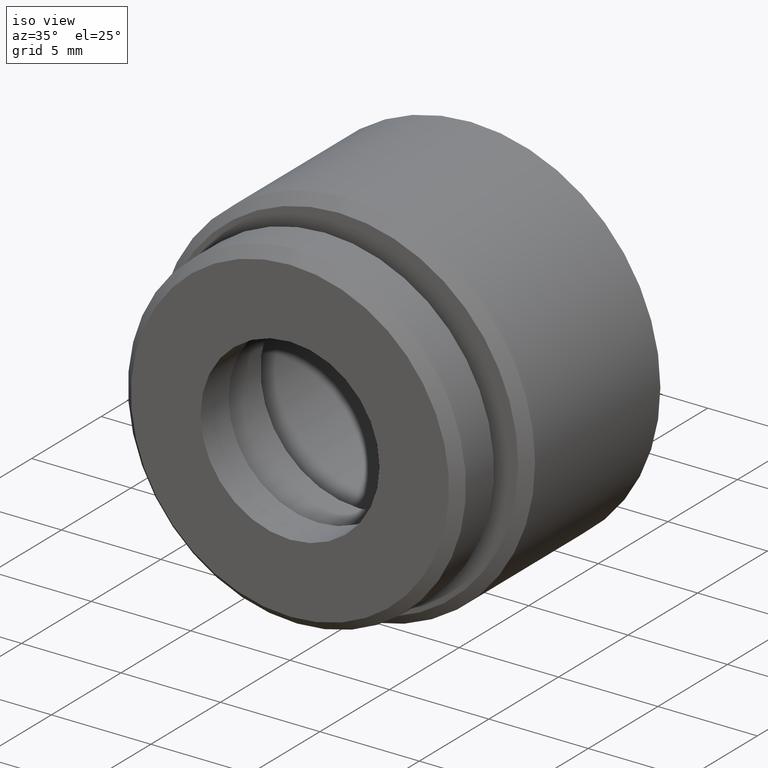
[diagram: clean part render]
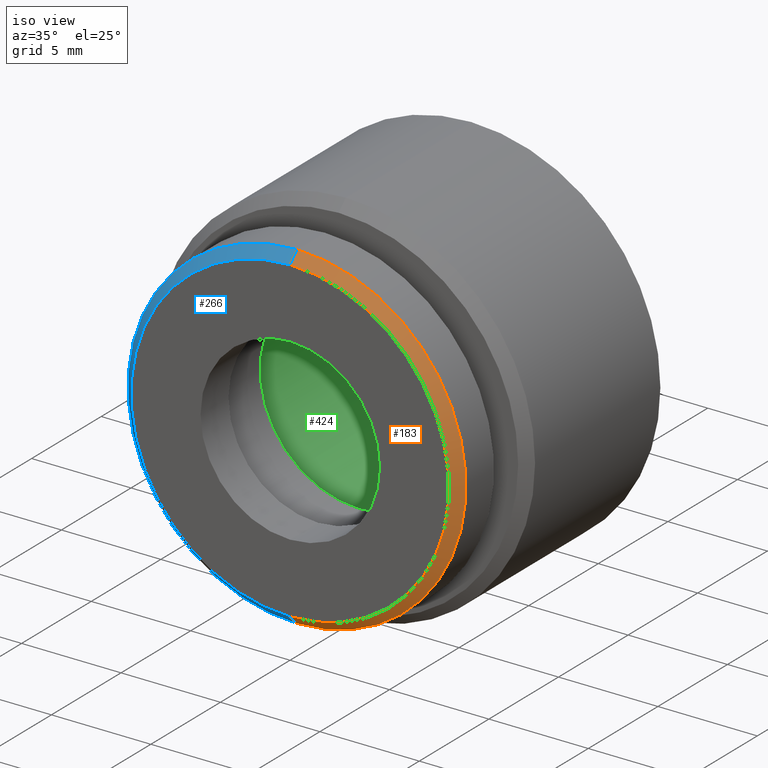
[diagram: same view with three faces highlighted in distinct colors, each labeled with its STEP entity id]
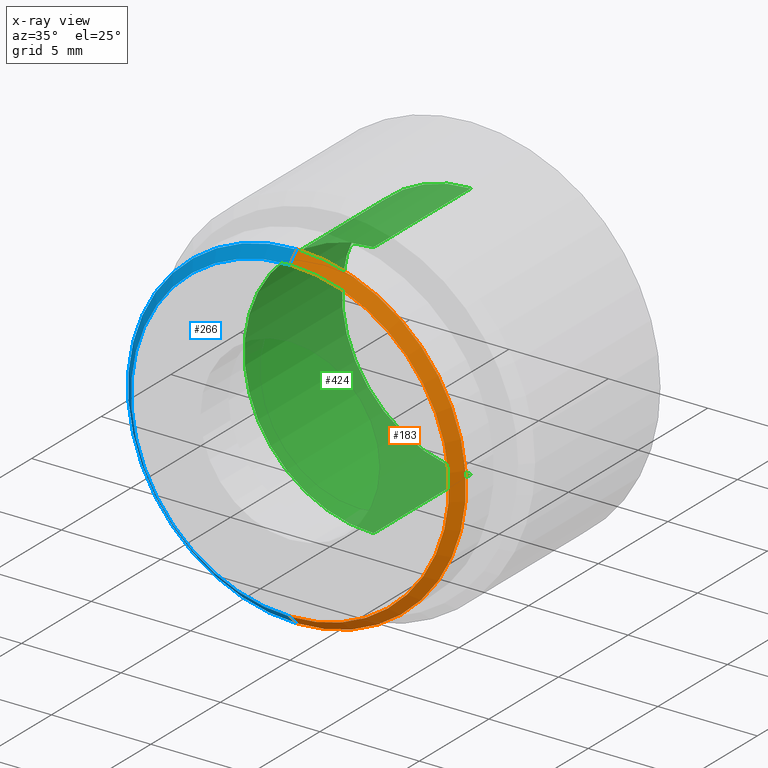
[diagram: x-ray of the same camera — body ghosted, the three highlighted faces saturated]
A machine part, iso view with three faces highlighted in distinct colors.
The next image is the same camera in x-ray (body ghosted, the three faces saturated) — at least one of them is partly hidden behind the body in this view.
Their STEP definitions:

[orange] entity #183 — the highlighted conical surface has half-angle 45 deg.
#3 = DIRECTION ( 'NONE',  ( 0.0000000000000000000, 0.0000000000000000000, -1.000000000000000000 ) ) ;
#32 = CARTESIAN_POINT ( 'NONE',  ( 9.797174393178825700E-016, 0.0000000000000000000, -8.000000000000000000 ) ) ;
#81 = EDGE_CURVE ( 'NONE', #293, #108, #849, .T. ) ;
#86 = AXIS2_PLACEMENT_3D ( 'NONE', #750, #156, #633 ) ;
#108 = VERTEX_POINT ( 'NONE', #315 ) ;
#117 = AXIS2_PLACEMENT_3D ( 'NONE', #579, #753, #3 ) ;
#149 = DIRECTION ( 'NONE',  ( 0.0000000000000000000, 1.000000000000000000, 0.0000000000000000000 ) ) ;
#156 = DIRECTION ( 'NONE',  ( 0.0000000000000000000, 1.000000000000000000, 0.0000000000000000000 ) ) ;
#183 = ADVANCED_FACE ( 'NONE', ( #493 ), #609, .T. ) ;
#227 = ORIENTED_EDGE ( 'NONE', *, *, #359, .T. ) ;
#256 = CIRCLE ( 'NONE', #117, 8.000000000000000000 ) ;
#257 = EDGE_CURVE ( 'NONE', #803, #293, #256, .T. ) ;
#267 = DIRECTION ( 'NONE',  ( 0.0000000000000000000, 0.7071067811865487900, 0.7071067811865463500 ) ) ;
#270 = VECTOR ( 'NONE', #513, 1000.000000000000000 ) ;
#293 = VERTEX_POINT ( 'NONE', #381 ) ;
#301 = CIRCLE ( 'NONE', #789, 8.500000000000000000 ) ;
#315 = CARTESIAN_POINT ( 'NONE',  ( 1.040949779275250100E-015, 0.5000000000000022200, 8.500000000000000000 ) ) ;
#359 = EDGE_CURVE ( 'NONE', #803, #835, #465, .T. ) ;
#381 = CARTESIAN_POINT ( 'NONE',  ( 0.0000000000000000000, 0.0000000000000000000, 8.000000000000000000 ) ) ;
#428 = ORIENTED_EDGE ( 'NONE', *, *, #81, .F. ) ;
#464 = CARTESIAN_POINT ( 'NONE',  ( 0.0000000000000000000, 0.5000000000000022200, -8.500000000000000000 ) ) ;
#465 = LINE ( 'NONE', #32, #270 ) ;
#475 = ORIENTED_EDGE ( 'NONE', *, *, #510, .F. ) ;
#493 = FACE_OUTER_BOUND ( 'NONE', #839, .T. ) ;
#510 = EDGE_CURVE ( 'NONE', #108, #835, #301, .T. ) ;
#513 = DIRECTION ( 'NONE',  ( 8.659560562354918100E-017, 0.7071067811865487900, -0.7071067811865463500 ) ) ;
#519 = CARTESIAN_POINT ( 'NONE',  ( 0.0000000000000000000, 0.5000000000000022200, 0.0000000000000000000 ) ) ;
#579 = CARTESIAN_POINT ( 'NONE',  ( 0.0000000000000000000, 0.0000000000000000000, 0.0000000000000000000 ) ) ;
#609 = CONICAL_SURFACE ( 'NONE', #86, 8.000000000000000000, 0.7853981633974466100 ) ;
#633 = DIRECTION ( 'NONE',  ( 0.0000000000000000000, 0.0000000000000000000, 1.000000000000000000 ) ) ;
#745 = ORIENTED_EDGE ( 'NONE', *, *, #257, .F. ) ;
#750 = CARTESIAN_POINT ( 'NONE',  ( 0.0000000000000000000, 0.0000000000000000000, 0.0000000000000000000 ) ) ;
#753 = DIRECTION ( 'NONE',  ( -0.0000000000000000000, -1.000000000000000000, -0.0000000000000000000 ) ) ;
#759 = DIRECTION ( 'NONE',  ( 0.0000000000000000000, 0.0000000000000000000, -1.000000000000000000 ) ) ;
#789 = AXIS2_PLACEMENT_3D ( 'NONE', #519, #149, #759 ) ;
#796 = VECTOR ( 'NONE', #267, 1000.000000000000000 ) ;
#797 = CARTESIAN_POINT ( 'NONE',  ( 1.010333609296566500E-015, 0.0000000000000000000, -8.000000000000000000 ) ) ;
#803 = VERTEX_POINT ( 'NONE', #797 ) ;
#835 = VERTEX_POINT ( 'NONE', #464 ) ;
#839 = EDGE_LOOP ( 'NONE', ( #745, #227, #475, #428 ) ) ;
#849 = LINE ( 'NONE', #851, #796 ) ;
#851 = CARTESIAN_POINT ( 'NONE',  ( 0.0000000000000000000, 0.0000000000000000000, 8.000000000000000000 ) ) ;

[blue] entity #266 — the highlighted conical surface has half-angle 45 deg.
#5 = CIRCLE ( 'NONE', #539, 8.500000000000000000 ) ;
#27 = CONICAL_SURFACE ( 'NONE', #280, 8.000000000000000000, 0.7853981633974466100 ) ;
#32 = CARTESIAN_POINT ( 'NONE',  ( 9.797174393178825700E-016, 0.0000000000000000000, -8.000000000000000000 ) ) ;
#81 = EDGE_CURVE ( 'NONE', #293, #108, #849, .T. ) ;
#85 = CARTESIAN_POINT ( 'NONE',  ( 0.0000000000000000000, 0.5000000000000022200, 0.0000000000000000000 ) ) ;
#108 = VERTEX_POINT ( 'NONE', #315 ) ;
#154 = ORIENTED_EDGE ( 'NONE', *, *, #81, .T. ) ;
#167 = EDGE_LOOP ( 'NONE', ( #743, #300, #154, #561 ) ) ;
#198 = EDGE_CURVE ( 'NONE', #835, #108, #5, .T. ) ;
#230 = FACE_OUTER_BOUND ( 'NONE', #167, .T. ) ;
#266 = ADVANCED_FACE ( 'NONE', ( #230 ), #27, .T. ) ;
#267 = DIRECTION ( 'NONE',  ( 0.0000000000000000000, 0.7071067811865487900, 0.7071067811865463500 ) ) ;
#270 = VECTOR ( 'NONE', #513, 1000.000000000000000 ) ;
#280 = AXIS2_PLACEMENT_3D ( 'NONE', #662, #636, #366 ) ;
#293 = VERTEX_POINT ( 'NONE', #381 ) ;
#300 = ORIENTED_EDGE ( 'NONE', *, *, #352, .F. ) ;
#315 = CARTESIAN_POINT ( 'NONE',  ( 1.040949779275250100E-015, 0.5000000000000022200, 8.500000000000000000 ) ) ;
#335 = DIRECTION ( 'NONE',  ( 0.0000000000000000000, 1.000000000000000000, 0.0000000000000000000 ) ) ;
#352 = EDGE_CURVE ( 'NONE', #293, #803, #577, .T. ) ;
#359 = EDGE_CURVE ( 'NONE', #803, #835, #465, .T. ) ;
#366 = DIRECTION ( 'NONE',  ( 0.0000000000000000000, 0.0000000000000000000, 1.000000000000000000 ) ) ;
#381 = CARTESIAN_POINT ( 'NONE',  ( 0.0000000000000000000, 0.0000000000000000000, 8.000000000000000000 ) ) ;
#464 = CARTESIAN_POINT ( 'NONE',  ( 0.0000000000000000000, 0.5000000000000022200, -8.500000000000000000 ) ) ;
#465 = LINE ( 'NONE', #32, #270 ) ;
#513 = DIRECTION ( 'NONE',  ( 8.659560562354918100E-017, 0.7071067811865487900, -0.7071067811865463500 ) ) ;
#539 = AXIS2_PLACEMENT_3D ( 'NONE', #85, #335, #659 ) ;
#561 = ORIENTED_EDGE ( 'NONE', *, *, #198, .F. ) ;
#577 = CIRCLE ( 'NONE', #860, 8.000000000000000000 ) ;
#634 = DIRECTION ( 'NONE',  ( -0.0000000000000000000, -1.000000000000000000, -0.0000000000000000000 ) ) ;
#636 = DIRECTION ( 'NONE',  ( 0.0000000000000000000, 1.000000000000000000, 0.0000000000000000000 ) ) ;
#659 = DIRECTION ( 'NONE',  ( 0.0000000000000000000, 0.0000000000000000000, -1.000000000000000000 ) ) ;
#662 = CARTESIAN_POINT ( 'NONE',  ( 0.0000000000000000000, 0.0000000000000000000, 0.0000000000000000000 ) ) ;
#743 = ORIENTED_EDGE ( 'NONE', *, *, #359, .F. ) ;
#763 = CARTESIAN_POINT ( 'NONE',  ( 0.0000000000000000000, 0.0000000000000000000, 0.0000000000000000000 ) ) ;
#796 = VECTOR ( 'NONE', #267, 1000.000000000000000 ) ;
#797 = CARTESIAN_POINT ( 'NONE',  ( 1.010333609296566500E-015, 0.0000000000000000000, -8.000000000000000000 ) ) ;
#803 = VERTEX_POINT ( 'NONE', #797 ) ;
#835 = VERTEX_POINT ( 'NONE', #464 ) ;
#849 = LINE ( 'NONE', #851, #796 ) ;
#851 = CARTESIAN_POINT ( 'NONE',  ( 0.0000000000000000000, 0.0000000000000000000, 8.000000000000000000 ) ) ;
#860 = AXIS2_PLACEMENT_3D ( 'NONE', #763, #634, #864 ) ;
#864 = DIRECTION ( 'NONE',  ( 0.0000000000000000000, 0.0000000000000000000, -1.000000000000000000 ) ) ;

[green] entity #424 — the highlighted cylindrical surface (partial cylindrical patch) has radius 6.5 mm, axis along (-0, -1, -0).
#28 = ORIENTED_EDGE ( 'NONE', *, *, #111, .T. ) ;
#35 = DIRECTION ( 'NONE',  ( 0.0000000000000000000, 0.0000000000000000000, 1.000000000000000000 ) ) ;
#52 = VECTOR ( 'NONE', #602, 1000.000000000000000 ) ;
#56 = LINE ( 'NONE', #377, #451 ) ;
#67 = LINE ( 'NONE', #76, #52 ) ;
#76 = CARTESIAN_POINT ( 'NONE',  ( 7.960204194457796500E-016, 0.0000000000000000000, 6.500000000000000900 ) ) ;
#79 = DIRECTION ( 'NONE',  ( -0.0000000000000000000, -1.000000000000000000, -0.0000000000000000000 ) ) ;
#111 = EDGE_CURVE ( 'NONE', #551, #805, #666, .T. ) ;
#119 = CARTESIAN_POINT ( 'NONE',  ( 0.0000000000000000000, 12.99999999999999600, -6.500000000000000900 ) ) ;
#153 = DIRECTION ( 'NONE',  ( -0.0000000000000000000, -1.000000000000000000, -0.0000000000000000000 ) ) ;
#238 = FACE_OUTER_BOUND ( 'NONE', #367, .T. ) ;
#261 = AXIS2_PLACEMENT_3D ( 'NONE', #724, #725, #35 ) ;
#317 = EDGE_CURVE ( 'NONE', #715, #551, #67, .T. ) ;
#323 = AXIS2_PLACEMENT_3D ( 'NONE', #801, #598, #679 ) ;
#347 = CARTESIAN_POINT ( 'NONE',  ( 7.960204194457796500E-016, 12.99999999999999600, 6.500000000000000900 ) ) ;
#350 = CYLINDRICAL_SURFACE ( 'NONE', #323, 6.500000000000000900 ) ;
#367 = EDGE_LOOP ( 'NONE', ( #723, #788, #28, #815 ) ) ;
#372 = CARTESIAN_POINT ( 'NONE',  ( 0.0000000000000000000, 6.000000000000000000, 0.0000000000000000000 ) ) ;
#377 = CARTESIAN_POINT ( 'NONE',  ( 0.0000000000000000000, 0.0000000000000000000, -6.500000000000000900 ) ) ;
#424 = ADVANCED_FACE ( 'NONE', ( #238 ), #350, .F. ) ;
#451 = VECTOR ( 'NONE', #79, 1000.000000000000000 ) ;
#551 = VERTEX_POINT ( 'NONE', #755 ) ;
#592 = EDGE_CURVE ( 'NONE', #688, #805, #56, .T. ) ;
#598 = DIRECTION ( 'NONE',  ( -0.0000000000000000000, -1.000000000000000000, -0.0000000000000000000 ) ) ;
#602 = DIRECTION ( 'NONE',  ( -0.0000000000000000000, -1.000000000000000000, -0.0000000000000000000 ) ) ;
#654 = EDGE_CURVE ( 'NONE', #688, #715, #829, .T. ) ;
#666 = CIRCLE ( 'NONE', #778, 6.500000000000000900 ) ;
#679 = DIRECTION ( 'NONE',  ( 0.0000000000000000000, 0.0000000000000000000, -1.000000000000000000 ) ) ;
#688 = VERTEX_POINT ( 'NONE', #119 ) ;
#715 = VERTEX_POINT ( 'NONE', #347 ) ;
#723 = ORIENTED_EDGE ( 'NONE', *, *, #654, .T. ) ;
#724 = CARTESIAN_POINT ( 'NONE',  ( 0.0000000000000000000, 12.99999999999999600, 0.0000000000000000000 ) ) ;
#725 = DIRECTION ( 'NONE',  ( -0.0000000000000000000, 1.000000000000000000, -0.0000000000000000000 ) ) ;
#755 = CARTESIAN_POINT ( 'NONE',  ( 7.960204194457796500E-016, 6.000000000000000000, 6.500000000000000900 ) ) ;
#778 = AXIS2_PLACEMENT_3D ( 'NONE', #372, #153, #807 ) ;
#788 = ORIENTED_EDGE ( 'NONE', *, *, #317, .T. ) ;
#794 = CARTESIAN_POINT ( 'NONE',  ( 0.0000000000000000000, 6.000000000000000000, -6.500000000000000900 ) ) ;
#801 = CARTESIAN_POINT ( 'NONE',  ( 0.0000000000000000000, 0.0000000000000000000, 0.0000000000000000000 ) ) ;
#805 = VERTEX_POINT ( 'NONE', #794 ) ;
#807 = DIRECTION ( 'NONE',  ( 0.0000000000000000000, 0.0000000000000000000, -1.000000000000000000 ) ) ;
#815 = ORIENTED_EDGE ( 'NONE', *, *, #592, .F. ) ;
#829 = CIRCLE ( 'NONE', #261, 6.500000000000000900 ) ;